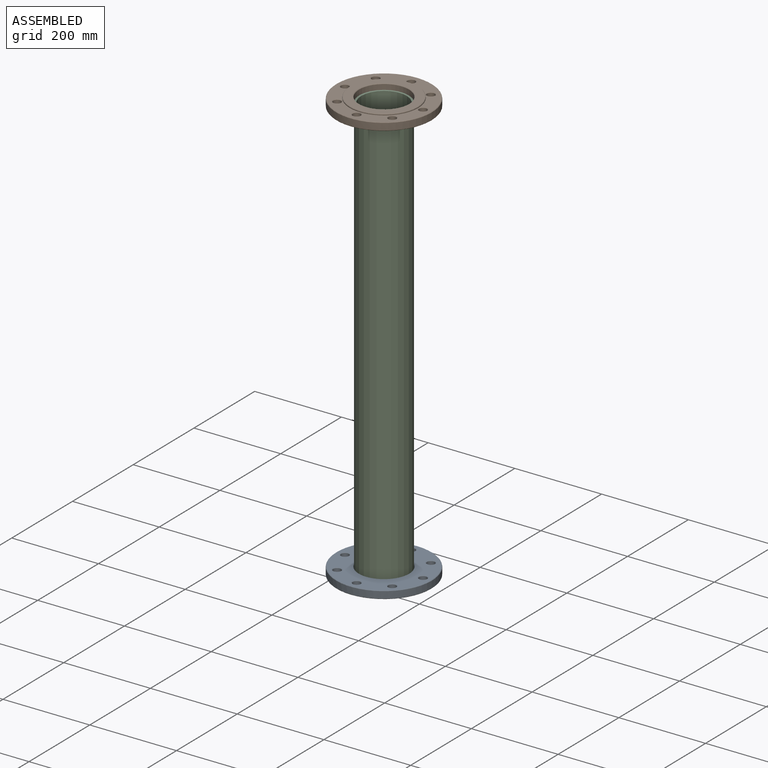
[diagram: assembled view]
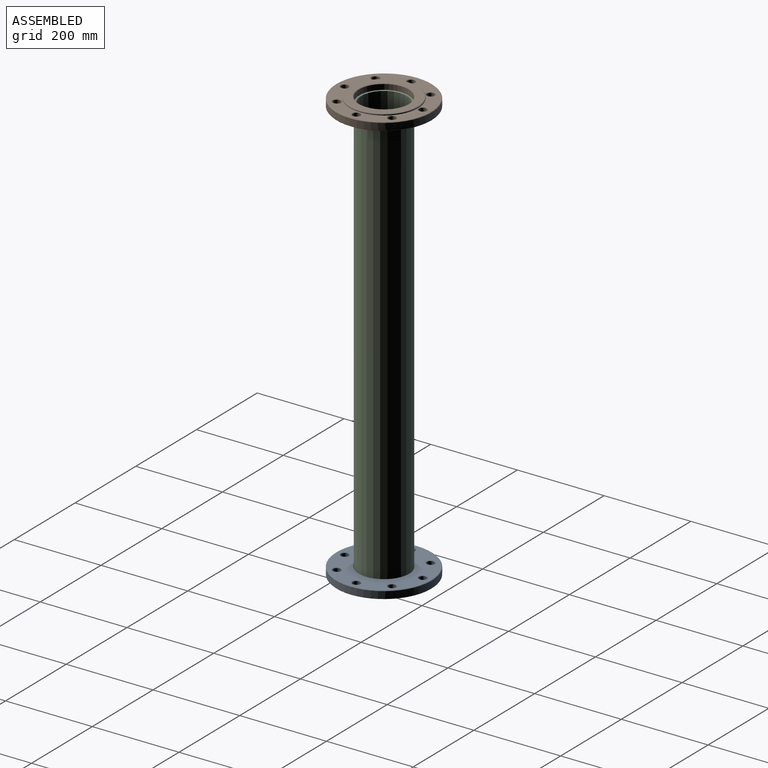
[diagram: assembled view, second angle]
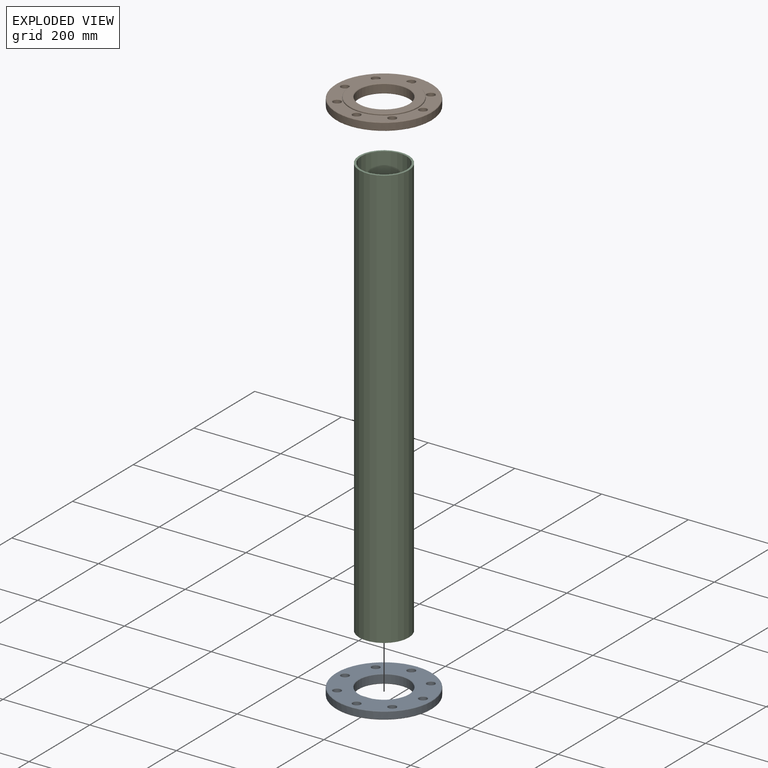
[diagram: exploded view]
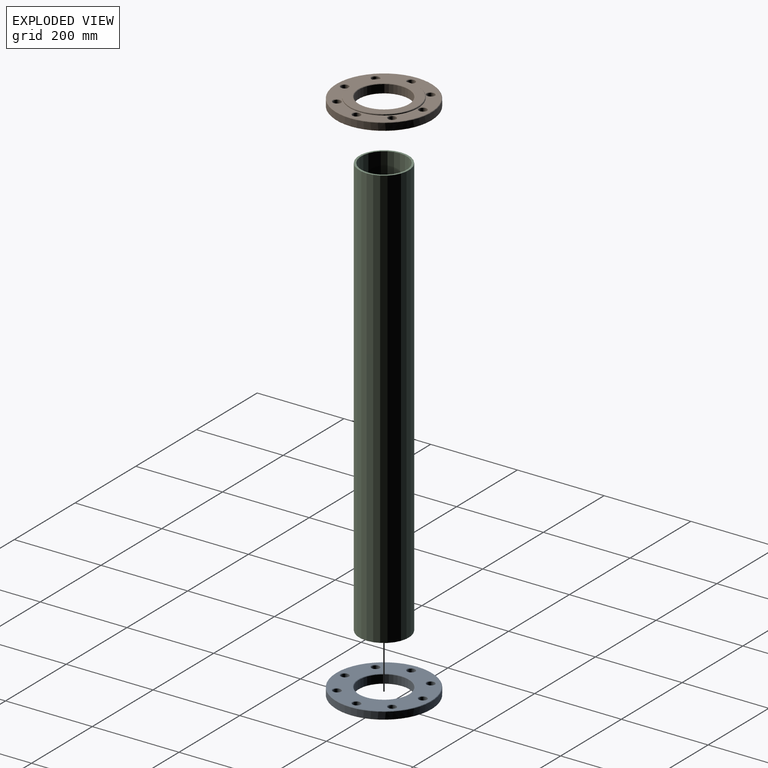
[diagram: exploded view, second angle]
ASSEMBLY  parts=3 mates=4
PART A: 35 faces, bbox 220x220x21 mm
  f0: plane 218x218mm, normal (0,0,-1), area 24060.7mm2, adj f15,f17,f19,f21,f23,f25,f27,f29
  f1: cylinder r=57.5mm len=115mm, axis (0,0,1), area 6864.4mm2, adj f14,f15
  f2: plane 156x156mm, normal (0,0,1), area 8362.1mm2, adj f14,f16
  f3: cylinder r=79mm len=158mm, axis (0,0,1), area 992.7mm2, adj f4,f16
  f4: plane 218x218mm, normal (0,0,1), area 15205.3mm2, adj f3,f18,f20,f22,f24,f26,f28,f30
  f5: cylinder r=110mm len=220mm, axis (0,0,1), area 11058.4mm2, adj f33,f34
  f6: cylinder r=9mm len=18mm, axis (0,0,1), area 904.8mm2, adj f31,f32
  f7: cylinder r=9mm len=18mm, axis (0,0,1), area 904.8mm2, adj f29,f30
  f8: cylinder r=9mm len=18mm, axis (0,0,1), area 904.8mm2, adj f27,f28
  f9: cylinder r=9mm len=18mm, axis (0,0,1), area 904.8mm2, adj f25,f26
  f10: cylinder r=9mm len=18mm, axis (0,0,1), area 904.8mm2, adj f23,f24
  f11: cylinder r=9mm len=18mm, axis (0,0,1), area 904.8mm2, adj f21,f22
  f12: cylinder r=9mm len=18mm, axis (0,0,1), area 904.8mm2, adj f19,f20
  f13: cylinder r=9mm len=18mm, axis (0,0,1), area 904.8mm2, adj f17,f18
  f14: cone r=57.5mm half-angle=45deg, axis (0,0,1), area 515.4mm2, adj f1,f2
  f15: cone r=58.5mm half-angle=45deg, axis (0,0,-1), area 515.4mm2, adj f0,f1
  f16: cone r=78mm half-angle=45deg, axis (0,0,-1), area 697.5mm2, adj f2,f3
  f17: cone r=10mm half-angle=45deg, axis (0,0,-1), area 84.4mm2, adj f0,f13
  f18: cone r=9mm half-angle=45deg, axis (0,0,1), area 84.4mm2, adj f4,f13
  f19: cone r=10mm half-angle=45deg, axis (0,0,-1), area 84.4mm2, adj f0,f12
  f20: cone r=9mm half-angle=45deg, axis (0,0,1), area 84.4mm2, adj f4,f12
  f21: cone r=10mm half-angle=45deg, axis (0,0,-1), area 84.4mm2, adj f0,f11
  f22: cone r=9mm half-angle=45deg, axis (0,0,1), area 84.4mm2, adj f4,f11
  f23: cone r=10mm half-angle=45deg, axis (0,0,-1), area 84.4mm2, adj f0,f10
  f24: cone r=9mm half-angle=45deg, axis (0,0,1), area 84.4mm2, adj f4,f10
  f25: cone r=10mm half-angle=45deg, axis (0,0,-1), area 84.4mm2, adj f0,f9
  f26: cone r=9mm half-angle=45deg, axis (0,0,1), area 84.4mm2, adj f4,f9
  f27: cone r=10mm half-angle=45deg, axis (0,0,-1), area 84.4mm2, adj f0,f8
  f28: cone r=9mm half-angle=45deg, axis (0,0,1), area 84.4mm2, adj f4,f8
  f29: cone r=10mm half-angle=45deg, axis (0,0,-1), area 84.4mm2, adj f0,f7
  f30: cone r=9mm half-angle=45deg, axis (0,0,1), area 84.4mm2, adj f4,f7
  f31: cone r=10mm half-angle=45deg, axis (0,0,-1), area 84.4mm2, adj f0,f6
  f32: cone r=9mm half-angle=45deg, axis (0,0,1), area 84.4mm2, adj f4,f6
  f33: cone r=109mm half-angle=45deg, axis (0,0,-1), area 973mm2, adj f4,f5
  f34: cone r=110mm half-angle=45deg, axis (0,0,1), area 973mm2, adj f0,f5
PART B: same geometry as A
PART C: 4 faces, bbox 114.3x114.3x974 mm
  f0: cylinder r=52.55mm len=974mm, axis (0,0,-1), area 321596.7mm2, adj f2,f3
  f1: cylinder r=57.15mm len=974mm, axis (0,0,-1), area 349747.9mm2, adj f2,f3
  f2: plane 114.3x114.3mm, normal (0,0,1), area 1585.3mm2, adj f0,f1
  f3: plane 114.3x114.3mm, normal (0,0,-1), area 1585.3mm2, adj f0,f1
PLACE A rot(axis=(1,0,0),180deg) t=(-197.58,-205.54,-463.65)mm
PLACE B t=(-197.58,-205.54,494.35)mm
PLACE C t=(-197.58,-205.54,-471.65)mm
MATE slider A.f1 <-> C.f1  axis (0,0,-1) through (-197.58,-205.54,-483.65)mm
MATE fastened B.f1 <-> C.f1  axis (0,0,1) through (-197.58,-205.54,515.35)mm
MATE fastened A.f1 <-> C.f1  axis (0,0,-1) through (-197.58,-205.54,-484.65)mm
MATE slider B.f1 <-> C.f1  axis (0,0,1) through (-197.58,-205.54,504.85)mm
